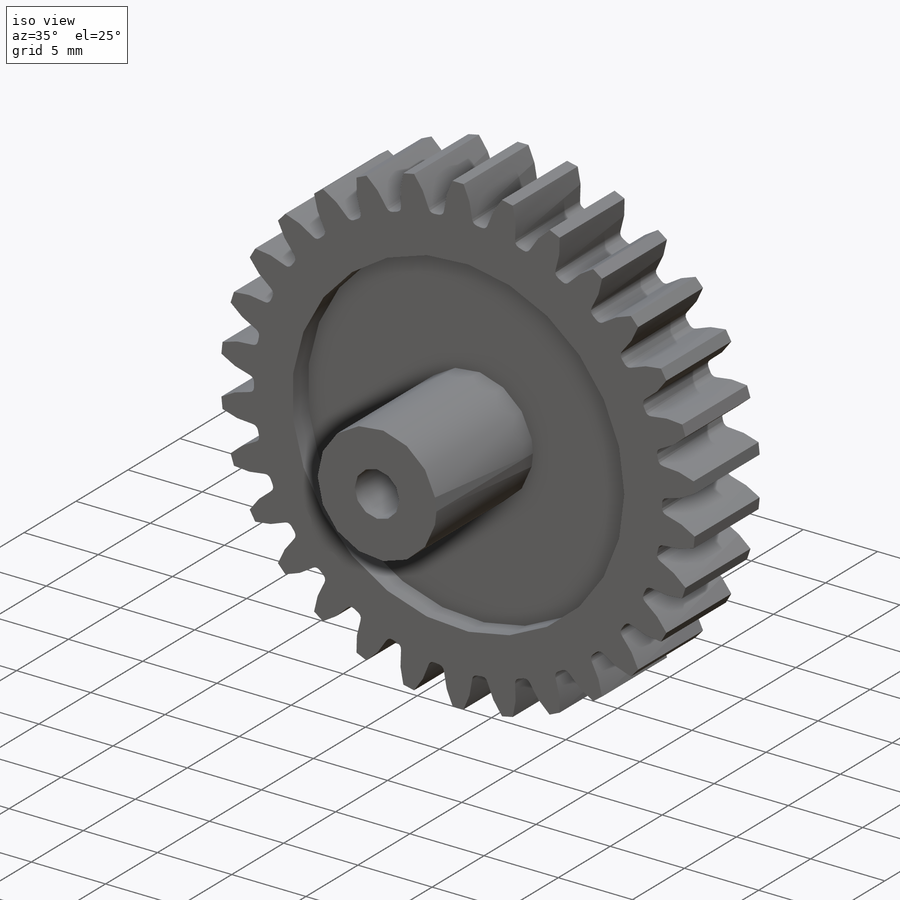
[diagram: iso view]
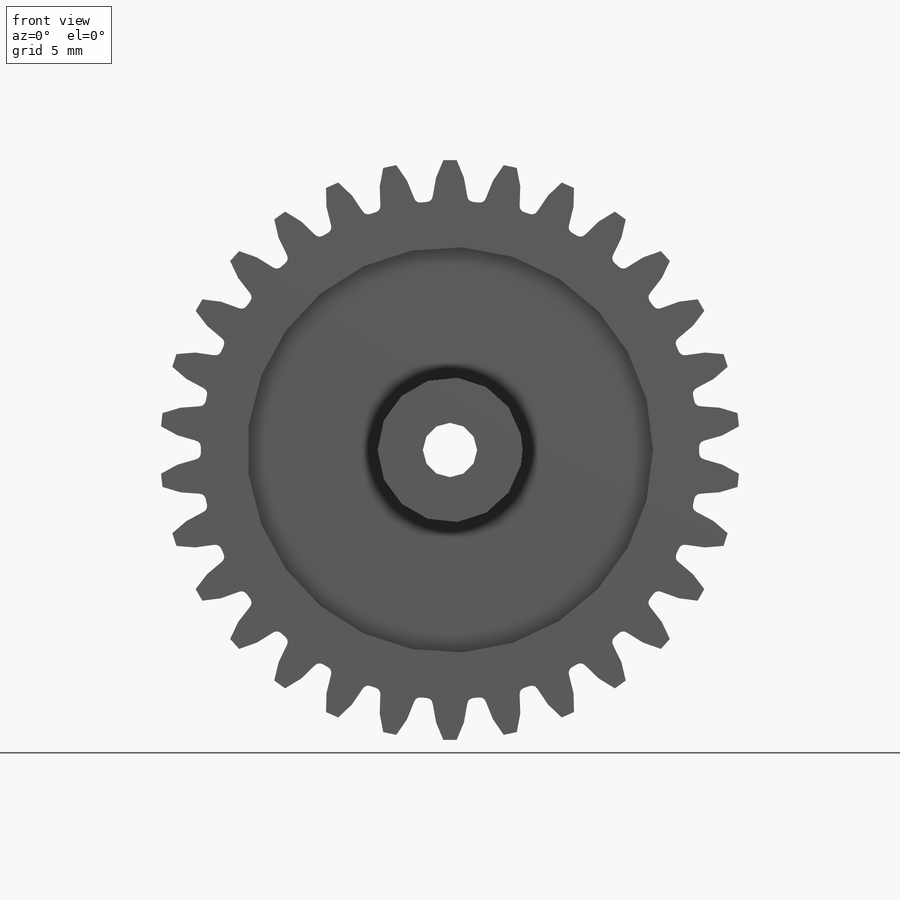
[diagram: front view]
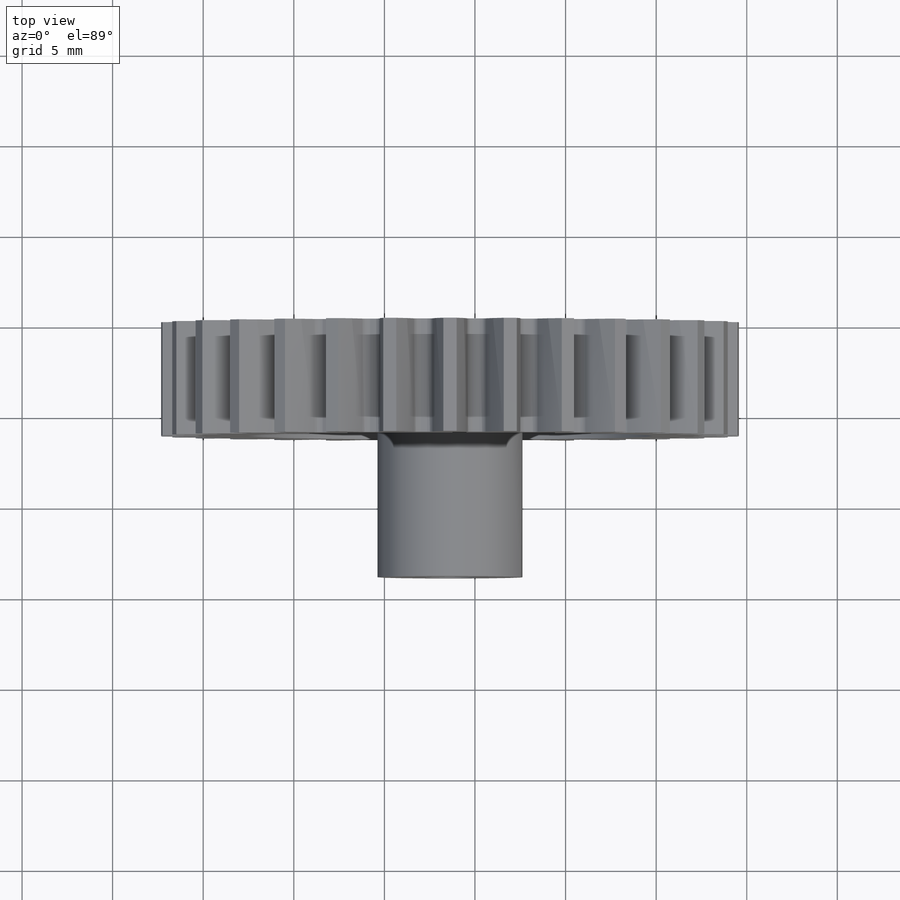
[diagram: top view]
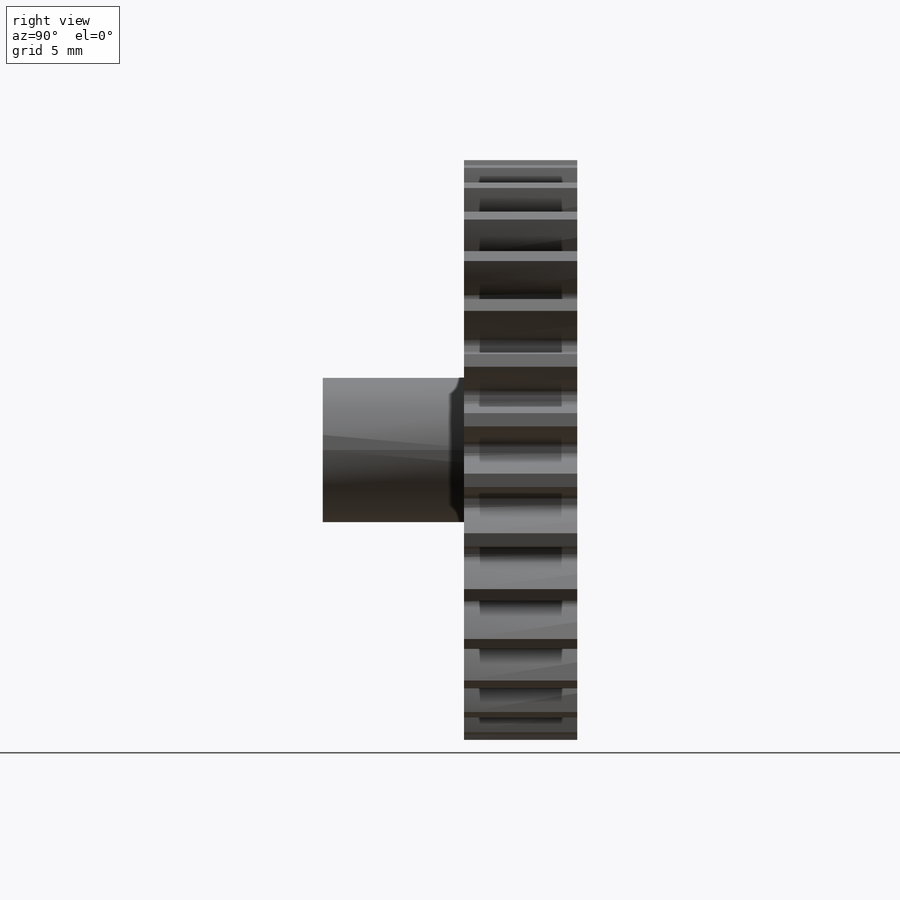
[diagram: right view]
SOLIDWORKS PART (.sldprt)
format: sldprt  version: not decoded by parser v0  size: 452,096 bytes
history: native  units: mm
features: sketch x7, plane x3, cut_extrude x3, extrude x2, material x1, fillet x1, pattern_circular x1 + 1 further entry (+7 scaffold rows collapsed)
feature tree (26):
  scaffold x7  (default folders/planes/origin — collapsed)
  material  "Matériau <non spécifié>"
  "Corps de surface"
  plane  "Plane1"
  plane  "Plane2"
  plane  "Plane3"
  sketch  "Esquisse4"
  sketch  "Parametres"  dims[Z=30.0mm m=1.0mm Alpha=20.0mm Alpha_rad=~0.349066mm PI=~3.141593mm R=15.0mm RT=16.0mm RP=13.75mm Rb=~14.095389mm E=~1.570796mm Eb=~1.896232mm As=~0.492905mm Et=0.7374mm Ap=6.0mm Ab=~7.707917mm At=~2.640619mm k=6.25mm]
  sketch  "Esquisse3"  dims[c1.D7=~26.109396mm c1.D1=~29.376396mm c2.D1=~5.114687deg c2.D2=~29.376396mm c3.D2=~11.734276deg c3.D3=~29.376396mm c4.D3=~14.703049deg c4.D4=~17.959793mm c5.D4=12.0deg c5.D5=~14.095389mm c5.D6=15.0mm c5.D7=~26.109403mm c5.D1=~26.109403mm c6.D1=~174.885313deg c7.D1=~26.109403mm c8.D1=~5.114687deg c9.D1=16.0mm c9.D2=~17.959793mm c10.D2=~3.853958deg c10.D3=~22.451883mm c11.D3=3.0deg c11.D7=~26.109403mm c12.D7=~5.114687deg c13.D7=~29.376396mm c14.D7=~5.114687deg c15.D7=~29.376396mm c16.D7=~5.114687deg c17.D7=~29.376396mm c18.D7=~5.114687deg c19.D7=~29.376396mm c20.D7=~5.114687deg c21.D7=~29.376396mm c22.D7=~1.32031deg c22.D8=13.75mm]
  extrude  "Boss.-Extru.1"  Depth=6.25mm
  fillet  "Congé1"  Radius=0.35mm
  pattern_circular  "Répétition circulaire4"  Count=30 Angle=12deg
  sketch  "Esquisse5"  dims[D1=1.45mm]
  cut_extrude  "Enlèv. mat.-Extru.1"  Depth=1.5mm
  sketch  "Esquisse6"  dims[D1=~3.287746mm]
  extrude  "Boss.-Extru.2"  Depth=9.3mm
  sketch  "Esquisse7"  dims[D1=~1.00779mm]
  cut_extrude  "Enlèv. mat.-Extru.2"  [1 undecoded]
  sketch  "Esquisse8"  dims[D1=~2.747785mm]
  cut_extrude  "Enlèv. mat.-Extru.3"  Depth=1.5mm
decode coverage: 12 of 14 modeling features carry decoded parameters; 1 rows unclassified (native names shown)
note: ~ marks probable driven/reference dimensions
note: 1 parameter value undecoded
note: suppression state not decoded; provenance and decode notes live in map.json
